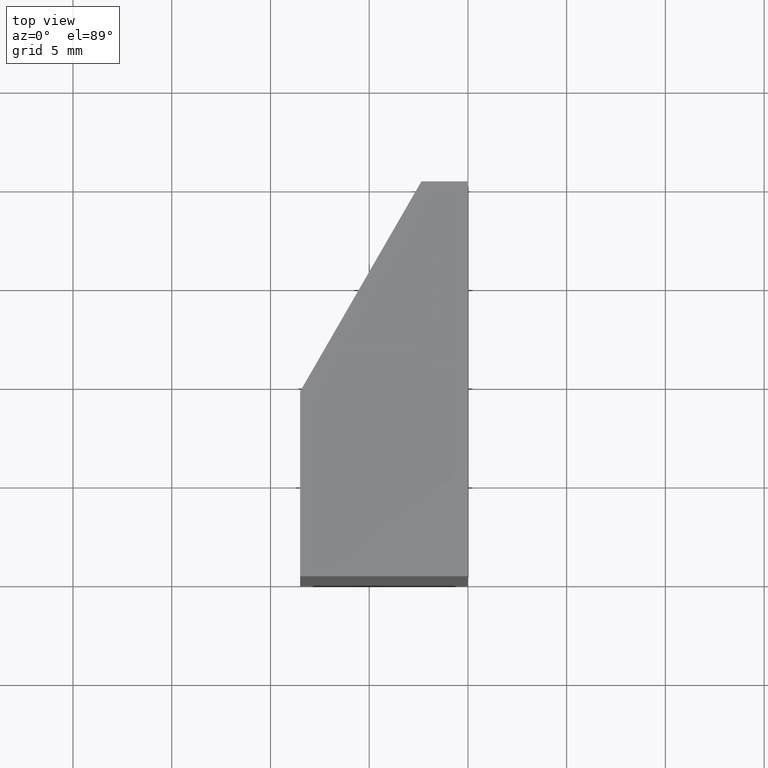
[diagram: clean part render]
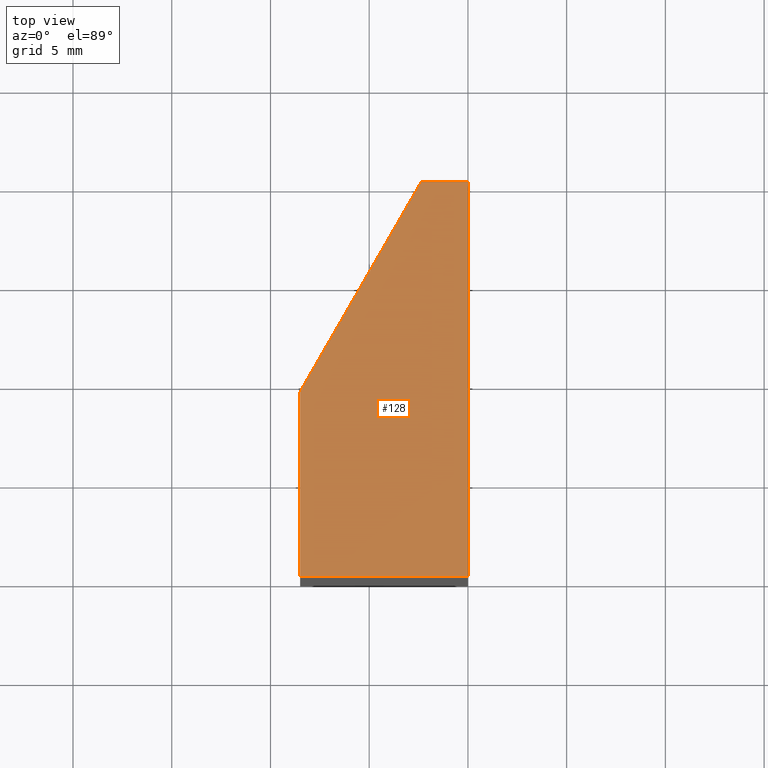
[diagram: same view with one face highlighted and labeled with its STEP entity id]
A machine part, top view. The second image highlights one B-rep face of the part: STEP entity #128.
In plain terms, the highlighted planar face has unit normal (0, 0, 1).
Its self-contained STEP definition (entity closure, byte-faithful):
#22=FACE_OUTER_BOUND('',#29,.T.);
#29=EDGE_LOOP('',(#110,#111,#112,#113,#114));
#35=LINE('',#205,#50);
#38=LINE('',#210,#53);
#40=LINE('',#214,#55);
#42=LINE('',#218,#57);
#44=LINE('',#221,#59);
#50=VECTOR('',#170,10.);
#53=VECTOR('',#175,10.);
#55=VECTOR('',#179,10.);
#57=VECTOR('',#183,10.);
#59=VECTOR('',#187,10.);
#65=VERTEX_POINT('',#203);
#66=VERTEX_POINT('',#204);
#67=VERTEX_POINT('',#209);
#68=VERTEX_POINT('',#213);
#69=VERTEX_POINT('',#217);
#75=EDGE_CURVE('',#65,#66,#35,.T.);
#78=EDGE_CURVE('',#66,#67,#38,.T.);
#80=EDGE_CURVE('',#67,#68,#40,.T.);
#82=EDGE_CURVE('',#68,#69,#42,.T.);
#84=EDGE_CURVE('',#69,#65,#44,.T.);
#110=ORIENTED_EDGE('',*,*,#75,.F.);
#111=ORIENTED_EDGE('',*,*,#84,.F.);
#112=ORIENTED_EDGE('',*,*,#82,.F.);
#113=ORIENTED_EDGE('',*,*,#80,.F.);
#114=ORIENTED_EDGE('',*,*,#78,.F.);
#121=PLANE('',#158);
#128=ADVANCED_FACE('',(#22),#121,.T.);
#158=AXIS2_PLACEMENT_3D('',#222,#188,#189);
#170=DIRECTION('',(0.,1.,0.));
#175=DIRECTION('',(0.5,0.866025403784439,0.));
#179=DIRECTION('',(1.,1.88413450637867E-15,0.));
#183=DIRECTION('',(2.77555756156289E-16,-1.,0.));
#187=DIRECTION('',(-1.,-1.32098063469825E-16,0.));
#188=DIRECTION('center_axis',(0.,0.,1.));
#189=DIRECTION('ref_axis',(1.,0.,0.));
#203=CARTESIAN_POINT('',(-8.5,1.0976125097568E-15,15.));
#204=CARTESIAN_POINT('',(-8.5,9.36,15.));
#205=CARTESIAN_POINT('',(-8.5,1.0976125097568E-15,15.));
#209=CARTESIAN_POINT('',(-2.35699313582238,20.,15.));
#210=CARTESIAN_POINT('',(-8.5,9.36,15.));
#213=CARTESIAN_POINT('',(0.,20.,15.));
#214=CARTESIAN_POINT('',(-2.35699313582238,20.,15.));
#217=CARTESIAN_POINT('',(5.55111512312578E-15,2.22044604925031E-15,15.));
#218=CARTESIAN_POINT('',(0.,20.,15.));
#221=CARTESIAN_POINT('',(5.55111512312578E-15,2.22044604925031E-15,15.));
#222=CARTESIAN_POINT('Origin',(-3.52660357449307,8.97669242959624,15.));